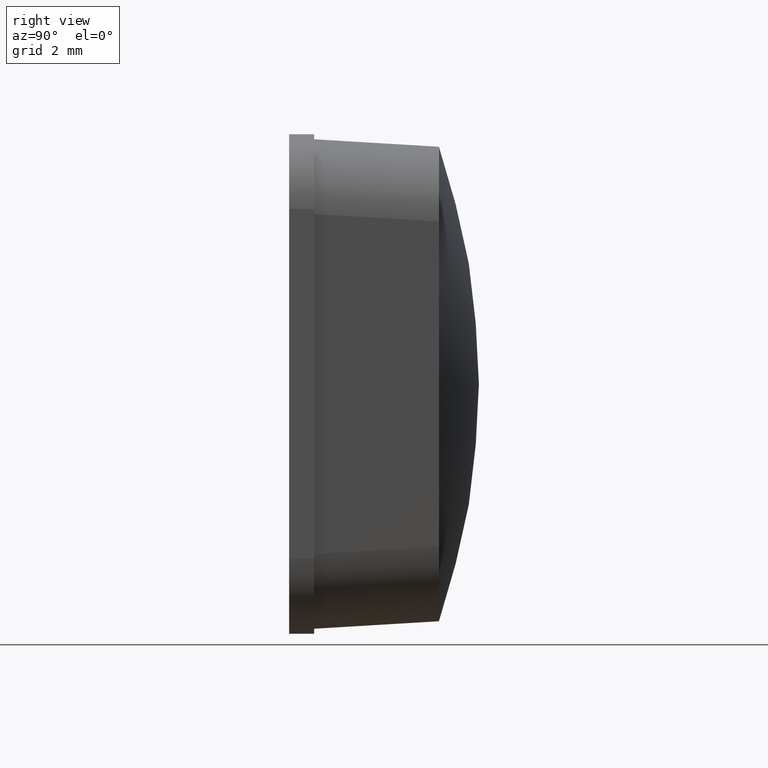
[diagram: clean part render]
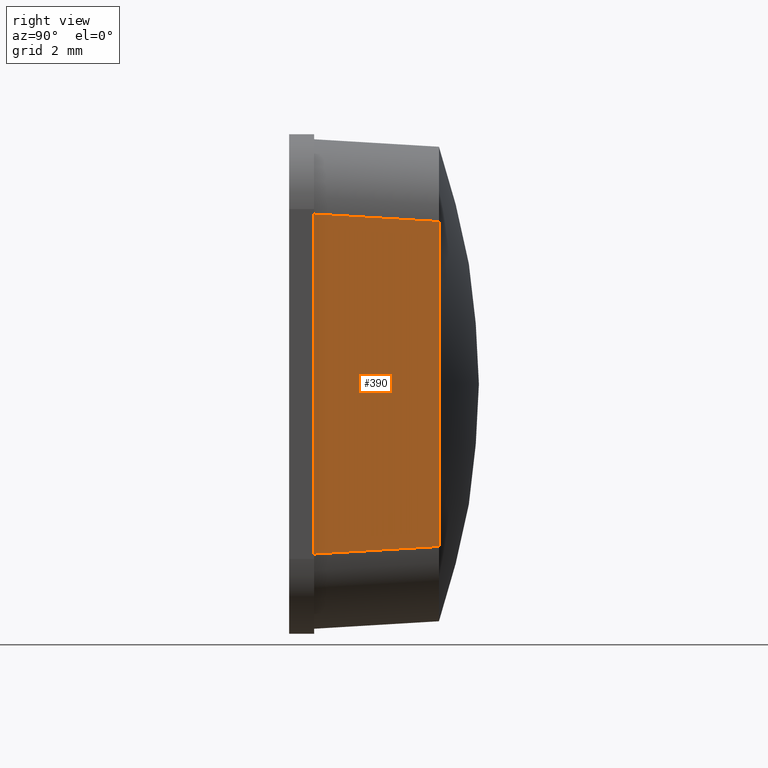
[diagram: same view with one face highlighted and labeled with its STEP entity id]
A machine part, right view. The second image highlights one B-rep face of the part: STEP entity #390.
In plain terms, the highlighted planar face has unit normal (0.9982, 0.0599, 0).
Its self-contained STEP definition (entity closure, byte-faithful):
#29=PLANE('',#426);
#47=FACE_OUTER_BOUND('',#70,.T.);
#70=EDGE_LOOP('',(#299,#300,#301,#302,#303));
#102=LINE('',#631,#138);
#103=LINE('',#635,#139);
#104=LINE('',#637,#140);
#105=LINE('',#639,#141);
#106=LINE('',#640,#142);
#138=VECTOR('',#504,2.50898385805888);
#139=VECTOR('',#509,3.25269273180134);
#140=VECTOR('',#510,3.25269273180133);
#141=VECTOR('',#511,2.50898385805888);
#142=VECTOR('',#512,6.80538546360267);
#190=VERTEX_POINT('',#628);
#191=VERTEX_POINT('',#630);
#192=VERTEX_POINT('',#634);
#193=VERTEX_POINT('',#636);
#194=VERTEX_POINT('',#638);
#232=EDGE_CURVE('',#190,#191,#102,.T.);
#234=EDGE_CURVE('',#190,#192,#103,.T.);
#235=EDGE_CURVE('',#192,#193,#104,.T.);
#236=EDGE_CURVE('',#194,#193,#105,.T.);
#237=EDGE_CURVE('',#191,#194,#106,.T.);
#299=ORIENTED_EDGE('',*,*,#232,.F.);
#300=ORIENTED_EDGE('',*,*,#234,.T.);
#301=ORIENTED_EDGE('',*,*,#235,.T.);
#302=ORIENTED_EDGE('',*,*,#236,.F.);
#303=ORIENTED_EDGE('',*,*,#237,.F.);
#390=ADVANCED_FACE('',(#47),#29,.T.);
#426=AXIS2_PLACEMENT_3D('',#633,#507,#508);
#504=DIRECTION('',(0.0597851594454067,-0.996419324090101,-0.059785159445406));
#507=DIRECTION('center_axis',(0.998204845465779,0.0598922907279474,2.21475061265819E-16));
#508=DIRECTION('ref_axis',(1.77635683940025E-16,0.,-1.));
#509=DIRECTION('',(1.1686558153949E-16,0.,1.));
#510=DIRECTION('',(1.1686558153949E-16,0.,1.));
#511=DIRECTION('',(-0.0597851594454067,0.996419324090101,-0.0597851594454061));
#512=DIRECTION('',(-2.2187335823087E-16,0.,1.));
#628=CARTESIAN_POINT('',(4.75,2.5,-3.25269273180134));
#630=CARTESIAN_POINT('',(4.9,2.77555756156289E-16,-3.40269273180134));
#631=CARTESIAN_POINT('',(4.73837401326997,2.69376644550048,-3.24106674507131));
#633=CARTESIAN_POINT('Origin',(4.75,2.5,-4.75));
#634=CARTESIAN_POINT('',(4.75,2.5,-5.55111512312578E-16));
#635=CARTESIAN_POINT('',(4.75,2.5,-4.75));
#636=CARTESIAN_POINT('',(4.75,2.5,3.25269273180133));
#637=CARTESIAN_POINT('',(4.75,2.5,-4.75));
#638=CARTESIAN_POINT('',(4.9,2.77555756156289E-16,3.40269273180133));
#639=CARTESIAN_POINT('',(4.73837401326997,2.69376644550048,3.2410667450713));
#640=CARTESIAN_POINT('',(4.9,2.77555756156289E-16,-2.375));